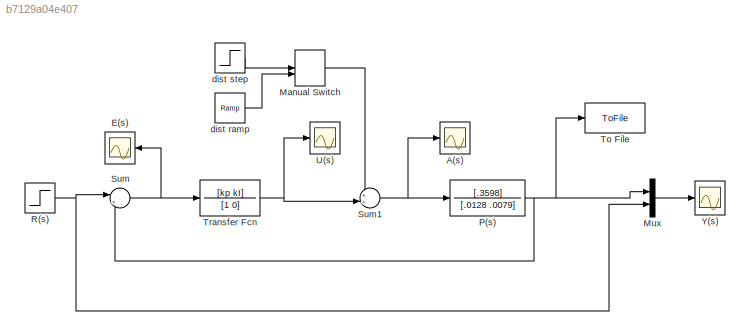
MODEL slx_b7129a04e407
KIND model
CONFIG AbsTol = auto
CONFIG FixedStep = auto
CONFIG MaxStep = auto
CONFIG MinStep = auto
CONFIG RelTol = 1e-3
CONFIG SampleTimeConstraint = Unconstrained
CONFIG Solver = ode45
CONFIG SolverMode = Auto
CONFIG SolverName = ode45
CONFIG StartTime = 0.0
CONFIG StopTime = 10.0
BLOCK [Scope] A(s)
  Floating = off
  NumInputPorts = 1
  Ports = [1]
  SaveName = ScopeData3
BLOCK [Scope] E(s)
  Floating = off
  NumInputPorts = 1
  Ports = [1]
BLOCK [ManualSwitch] Manual Switch
  CurrentSetting = 0
BLOCK [Mux] Mux
  DisplayOption = bar
  Inputs = 2
  Ports = [2, 1]
BLOCK [TransferFcn] P(s)
  Denominator = [.0128 .0079]
  Numerator = [.3598]
BLOCK [Step] R(s)
  After = 6.28
  SampleTime = 0
BLOCK [Sum] Sum
  IconShape = round
  InputSameDT = off
  Inputs = |+-
  OutDataTypeStr = Inherit: Inherit via internal rule
  Ports = [2, 1]
  SaturateOnIntegerOverflow = off
BLOCK [Sum] Sum1
  IconShape = round
  InputSameDT = off
  Inputs = ++|
  OutDataTypeStr = Inherit: Inherit via internal rule
  Ports = [2, 1]
  SaturateOnIntegerOverflow = off
BLOCK [ToFile] To File
  Filename = output.mat
  MatrixName = vel
  Ports = [1]
BLOCK [TransferFcn] Transfer Fcn
  Denominator = [1 0]
  Numerator = [kp kI]
BLOCK [Scope] U(s)
  Floating = off
  NumInputPorts = 1
  Ports = [1]
  SaveName = ScopeData2
BLOCK [Scope] Y(s)
  Floating = off
  LegendLocations = 0.93993     0.92859    0.040104    0.032403
  NumInputPorts = 1
  Ports = [1]
  SaveName = ScopeData1
  ShowLegends = on
  ZoomMode = yonly
BLOCK [Reference] dist ramp  REF=simulink/Sources/Ramp
  Ports = [0, 1]
  SourceBlock = simulink/Sources/Ramp
  SourceType = Ramp
  VectorParams1D = on
  X0 = 0
  slope = 1
  start = 0
BLOCK [Step] dist step
  SampleTime = 0
LINE Manual Switch:1 -> Sum1:1
LINE Mux:1 -> Y(s):1
NET P(s):1 -> Mux:1, Sum:2, To File:1
NET R(s):1 -> Mux:2, Sum:1
NET Sum1:1 -> A(s):1, P(s):1
NET Sum:1 -> E(s):1, Transfer Fcn:1
NET Transfer Fcn:1 -> Sum1:2, U(s):1
LINE dist ramp:1 -> Manual Switch:2
LINE dist step:1 -> Manual Switch:1
note: NET lines group one-source signal fan-out (src -> all destinations, sorted); 1:1 wires keep LINE
